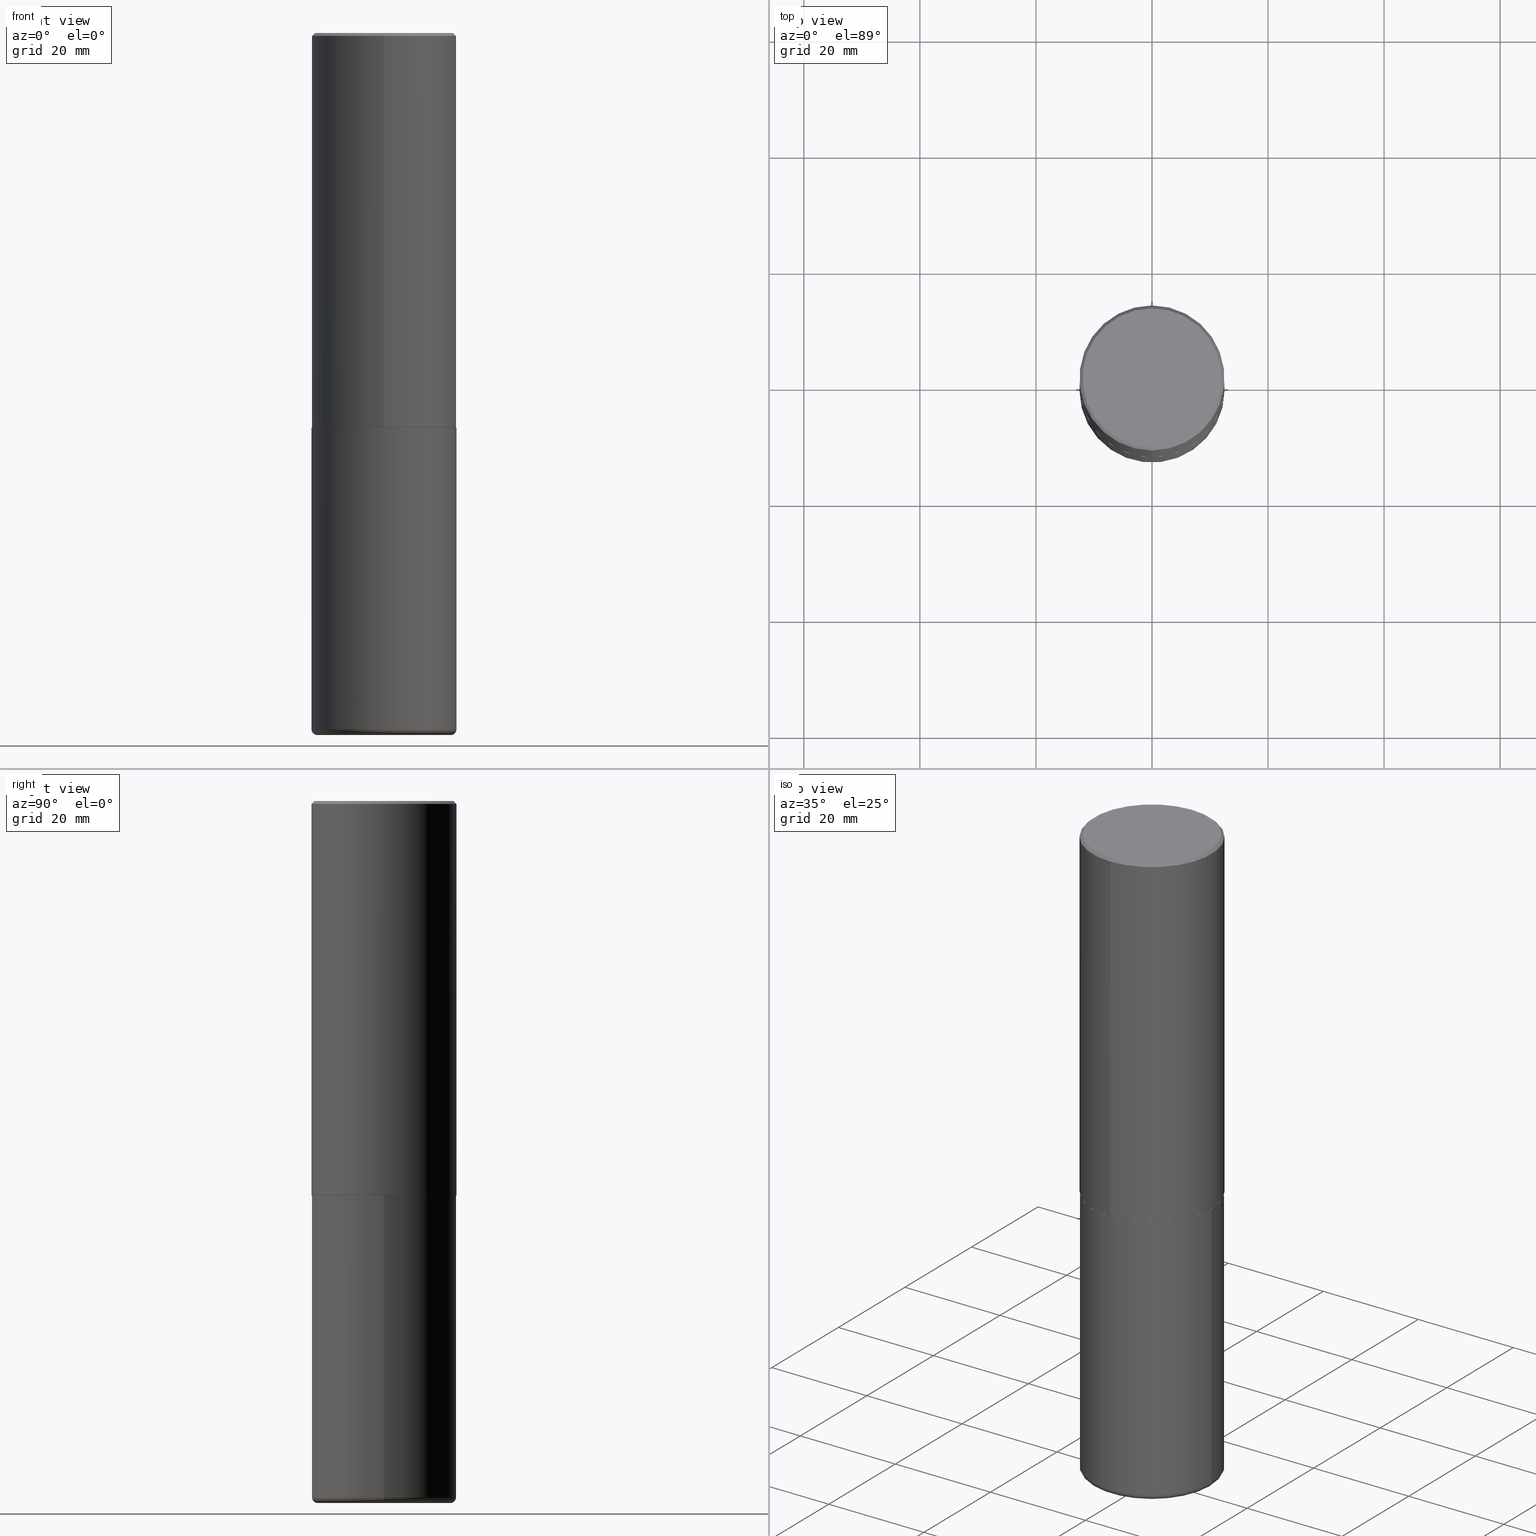
[diagram: canonical four-view strip — front | top / right | iso, engineering-drawing reading convention]
A machine part, canonical four-view strip (front | top / right | iso — engineering-drawing reading convention). The complete STEP part file that produces these views, byte-faithful:
ISO-10303-21;
HEADER;
FILE_DESCRIPTION (( 'STEP AP203' ),
    '1' );
FILE_NAME ('47143.STEP',
    '2024-03-05T23:20:40',
    ( '' ),
    ( '' ),
    'SwSTEP 2.0',
    'SolidWorks 2023',
    '' );
FILE_SCHEMA (( 'CONFIG_CONTROL_DESIGN' ));
ENDSEC;

DATA;
#1 = CARTESIAN_POINT ( 'NONE',  ( 0.000000000000000000, 0.000000000000000000, 0.000000000000000000 ) ) ;
#2 = UNCERTAINTY_MEASURE_WITH_UNIT (LENGTH_MEASURE( 1.000000000000000082E-05 ), #229, 'distance_accuracy_value', 'NONE');
#3 = DIMENSIONAL_EXPONENTS ( 1.000000000000000000, 0.000000000000000000, 0.000000000000000000, 0.000000000000000000, 0.000000000000000000, 0.000000000000000000, 0.000000000000000000 ) ;
#4 = COORDINATED_UNIVERSAL_TIME_OFFSET ( 5, 0, .BEHIND. ) ;
#5 = AXIS2_PLACEMENT_3D ( 'NONE', #167, #319, #10 ) ;
#6 = COORDINATED_UNIVERSAL_TIME_OFFSET ( 5, 0, .BEHIND. ) ;
#7 = EDGE_CURVE ( 'NONE', #388, #70, #258, .T. ) ;
#8 = ORIENTED_EDGE ( 'NONE', *, *, #371, .F. ) ;
#9 = CLOSED_SHELL ( 'NONE', ( #86, #340, #366, #161, #324, #414 ) ) ;
#10 = DIRECTION ( 'NONE',  ( 1.000000000000000000, -6.982962677686265133E-15, 4.883557194083112901E-29 ) ) ;
#11 = ORIENTED_EDGE ( 'NONE', *, *, #37, .F. ) ;
#12 = EDGE_CURVE ( 'NONE', #15, #331, #271, .T. ) ;
#13 = FACE_OUTER_BOUND ( 'NONE', #108, .T. ) ;
#14 = ORIENTED_EDGE ( 'NONE', *, *, #204, .F. ) ;
#15 = VERTEX_POINT ( 'NONE', #297 ) ;
#16 = ADVANCED_FACE ( 'NONE', ( #208 ), #336, .T. ) ;
#17 = AXIS2_PLACEMENT_3D ( 'NONE', #203, #38, #391 ) ;
#18 = ORIENTED_EDGE ( 'NONE', *, *, #7, .F. ) ;
#19 = DIRECTION ( 'NONE',  ( 0.000000000000000000, 0.000000000000000000, 1.000000000000000000 ) ) ;
#20 = APPROVAL ( #318, 'UNSPECIFIED' ) ;
#21 = ORIENTED_EDGE ( 'NONE', *, *, #172, .T. ) ;
#22 = CARTESIAN_POINT ( 'NONE',  ( -3.429682119145543892E-15, -0.4911500000000093014, -2.677199999999997360 ) ) ;
#23 = DIRECTION ( 'NONE',  ( 1.000000000000000000, -6.982962677686269077E-15, 0.000000000000000000 ) ) ;
#24 = CIRCLE ( 'NONE', #96, 0.03940000000000033753 ) ;
#25 = APPROVAL_PERSON_ORGANIZATION ( #288, #154, #350 ) ;
#26 = DIRECTION ( 'NONE',  ( 1.000000000000000000, -6.982962677686265922E-15, 0.000000000000000000 ) ) ;
#27 = CARTESIAN_POINT ( 'NONE',  ( 0.4921500000000000874, -1.993181951905385030E-14, -4.724399999999999267 ) ) ;
#28 = CC_DESIGN_DATE_AND_TIME_ASSIGNMENT ( #252, #98, ( #177 ) ) ;
#29 = FACE_OUTER_BOUND ( 'NONE', #397, .T. ) ;
#30 = CARTESIAN_POINT ( 'NONE',  ( -3.376394089603257868E-15, -0.4921499999999999764, -0.01999999999999839059 ) ) ;
#31 = APPROVAL_ROLE ( '' ) ;
#32 = DIRECTION ( 'NONE',  ( 1.000000000000000000, -6.982962677686265922E-15, 4.876176775795935793E-29 ) ) ;
#33 = CYLINDRICAL_SURFACE ( 'NONE', #150, 0.4921499999999999764 ) ;
#34 = DIRECTION ( 'NONE',  ( -2.447117958567619178E-29, 3.489119658767506053E-15, 1.000000000000000000 ) ) ;
#35 = ORIENTED_EDGE ( 'NONE', *, *, #199, .T. ) ;
#36 = AXIS2_PLACEMENT_3D ( 'NONE', #291, #389, #137 ) ;
#37 = EDGE_CURVE ( 'NONE', #374, #331, #404, .T. ) ;
#38 = DIRECTION ( 'NONE',  ( 2.438088387897960049E-29, -3.491481338843145188E-15, -1.000000000000000000 ) ) ;
#39 = ORIENTED_EDGE ( 'NONE', *, *, #53, .T. ) ;
#40 = CARTESIAN_POINT ( 'NONE',  ( -3.429682119145543892E-15, -0.4911500000000093014, -2.677199999999997360 ) ) ;
#41 = EDGE_CURVE ( 'NONE', #81, #361, #148, .T. ) ;
#42 = DIRECTION ( 'NONE',  ( -6.982962677686265922E-15, -1.000000000000000000, 3.489119658767506053E-15 ) ) ;
#43 = PLANE ( 'NONE',  #115 ) ;
#44 = VERTEX_POINT ( 'NONE', #235 ) ;
#45 = EDGE_LOOP ( 'NONE', ( #39, #264, #207, #135 ) ) ;
#46 = CC_DESIGN_DATE_AND_TIME_ASSIGNMENT ( #357, #418, ( #284 ) ) ;
#47 = CARTESIAN_POINT ( 'NONE',  ( 0.000000000000000000, 0.000000000000000000, 0.000000000000000000 ) ) ;
#48 = PRODUCT_DEFINITION_FORMATION_WITH_SPECIFIED_SOURCE ( 'ANY', '', #276, .NOT_KNOWN. ) ;
#49 = DIRECTION ( 'NONE',  ( -2.447117958567619178E-29, 3.489119658767506053E-15, 1.000000000000000000 ) ) ;
#50 = DIRECTION ( 'NONE',  ( -2.447117958567619178E-29, 3.489119658767506053E-15, 1.000000000000000000 ) ) ;
#51 = ORIENTED_EDGE ( 'NONE', *, *, #58, .F. ) ;
#52 = ORIENTED_EDGE ( 'NONE', *, *, #409, .F. ) ;
#53 = EDGE_CURVE ( 'NONE', #331, #15, #138, .T. ) ;
#54 = FACE_OUTER_BOUND ( 'NONE', #182, .T. ) ;
#55 = AXIS2_PLACEMENT_3D ( 'NONE', #211, #334, #151 ) ;
#56 = FACE_OUTER_BOUND ( 'NONE', #45, .T. ) ;
#57 = PRODUCT_DEFINITION_SHAPE ( 'NONE', 'NONE',  #284 ) ;
#58 = EDGE_CURVE ( 'NONE', #374, #44, #305, .T. ) ;
#59 = CARTESIAN_POINT ( 'NONE',  ( 1.164972429890475522E-28, -1.663271880198097847E-14, -4.763799999999999812 ) ) ;
#60 = APPROVAL_DATE_TIME ( #281, #253 ) ;
#61 = CARTESIAN_POINT ( 'NONE',  ( -3.307789109625541747E-15, -0.4721499999999996255, 1.872503941614685503E-15 ) ) ;
#62 = ADVANCED_BREP_SHAPE_REPRESENTATION ( '47143', ( #416, #136, #286 ), #170 ) ;
#63 = APPROVAL_PERSON_ORGANIZATION ( #348, #20, #31 ) ;
#64 = COORDINATED_UNIVERSAL_TIME_OFFSET ( 5, 0, .BEHIND. ) ;
#65 = DIRECTION ( 'NONE',  ( -6.982962677686265922E-15, -1.000000000000000000, 3.337287582609300506E-15 ) ) ;
#66 = FACE_OUTER_BOUND ( 'NONE', #295, .T. ) ;
#67 = EDGE_CURVE ( 'NONE', #331, #322, #244, .T. ) ;
#68 = PERSON_AND_ORGANIZATION_ROLE ( 'creator' ) ;
#69 = DIRECTION ( 'NONE',  ( -6.982962677686265922E-15, -1.000000000000000000, 3.489119658767506053E-15 ) ) ;
#70 = VERTEX_POINT ( 'NONE', #410 ) ;
#71 = DATE_AND_TIME ( #246, #130 ) ;
#72 = AXIS2_PLACEMENT_3D ( 'NONE', #209, #49, #180 ) ;
#73 = AXIS2_PLACEMENT_3D ( 'NONE', #103, #134, #387 ) ;
#74 = CARTESIAN_POINT ( 'NONE',  ( 3.489830646685796970E-15, 0.4911499999999905941, -2.677200000000000468 ) ) ;
#75 = ORIENTED_EDGE ( 'NONE', *, *, #7, .T. ) ;
#76 = PLANE ( 'NONE',  #17 ) ;
#77 = CLOSED_SHELL ( 'NONE', ( #245, #219, #260, #396, #16, #302, #296, #141 ) ) ;
#78 = CIRCLE ( 'NONE', #365, 0.4911499999999999755 ) ;
#79 =( NAMED_UNIT ( * ) PLANE_ANGLE_UNIT ( ) SI_UNIT ( $, .RADIAN. ) );
#80 = LOCAL_TIME ( 18, 20, 40.00000000000000000, #64 ) ;
#81 = VERTEX_POINT ( 'NONE', #220 ) ;
#82 =( NAMED_UNIT ( * ) SI_UNIT ( $, .STERADIAN. ) SOLID_ANGLE_UNIT ( ) );
#83 = ORIENTED_EDGE ( 'NONE', *, *, #317, .F. ) ;
#84 = APPLICATION_PROTOCOL_DEFINITION ( 'international standard', 'config_control_design', 1994, #176 ) ;
#85 = ORIENTED_EDGE ( 'NONE', *, *, #377, .F. ) ;
#86 = ADVANCED_FACE ( 'NONE', ( #354 ), #33, .T. ) ;
#87 = EDGE_LOOP ( 'NONE', ( #21, #181, #8, #341 ) ) ;
#88 = DIRECTION ( 'NONE',  ( -2.445468806185136877E-29, 3.491481338843145188E-15, 1.000000000000000000 ) ) ;
#89 = DIRECTION ( 'NONE',  ( -2.445468806185136597E-29, 3.491481338843145583E-15, 1.000000000000000000 ) ) ;
#90 = LINE ( 'NONE', #192, #196 ) ;
#91 = CC_DESIGN_PERSON_AND_ORGANIZATION_ASSIGNMENT ( #249, #383, ( #177 ) ) ;
#92 = CALENDAR_DATE ( 2024, 5, 3 ) ;
#93 = CARTESIAN_POINT ( 'NONE',  ( 0.4527499999999999858, -1.965669078955301187E-14, -4.724399999999999267 ) ) ;
#94 = PERSON_AND_ORGANIZATION_ROLE ( 'creator' ) ;
#95 = DIRECTION ( 'NONE',  ( 2.447117958567618897E-29, -3.489119658767506053E-15, -1.000000000000000000 ) ) ;
#96 = AXIS2_PLACEMENT_3D ( 'NONE', #93, #280, #307 ) ;
#97 = AXIS2_PLACEMENT_3D ( 'NONE', #289, #359, #327 ) ;
#98 = DATE_TIME_ROLE ( 'classification_date' ) ;
#99 = EDGE_CURVE ( 'NONE', #361, #372, #128, .T. ) ;
#100 = DIRECTION ( 'NONE',  ( 1.000000000000000000, -6.982962677686265133E-15, 4.883557194083112901E-29 ) ) ;
#101 = LINE ( 'NONE', #74, #190 ) ;
#102 = EDGE_LOOP ( 'NONE', ( #52, #85, #143, #116 ) ) ;
#103 = CARTESIAN_POINT ( 'NONE',  ( 6.551424198677227885E-29, -9.341071150452363547E-15, -2.677199999999999136 ) ) ;
#104 = EDGE_CURVE ( 'NONE', #70, #406, #24, .T. ) ;
#105 = CARTESIAN_POINT ( 'NONE',  ( 0.4921499999999999764, -1.278405892217416209E-14, -2.677199999999999580 ) ) ;
#106 = ORIENTED_EDGE ( 'NONE', *, *, #104, .T. ) ;
#107 = LENGTH_MEASURE_WITH_UNIT ( LENGTH_MEASURE( 0.02539999999999999897 ), #346 );
#108 = EDGE_LOOP ( 'NONE', ( #83, #287, #227, #224 ) ) ;
#109 = FACE_OUTER_BOUND ( 'NONE', #272, .T. ) ;
#110 = EDGE_CURVE ( 'NONE', #388, #81, #344, .T. ) ;
#111 = EDGE_LOOP ( 'NONE', ( #326, #267 ) ) ;
#112 = ORIENTED_EDGE ( 'NONE', *, *, #53, .F. ) ;
#113 = ORIENTED_EDGE ( 'NONE', *, *, #12, .T. ) ;
#114 = AXIS2_PLACEMENT_3D ( 'NONE', #59, #119, #380 ) ;
#115 = AXIS2_PLACEMENT_3D ( 'NONE', #364, #153, #232 ) ;
#116 = ORIENTED_EDGE ( 'NONE', *, *, #274, .T. ) ;
#117 = ORIENTED_EDGE ( 'NONE', *, *, #353, .F. ) ;
#118 = DIRECTION ( 'NONE',  ( -2.445468806185136597E-29, 3.491481338843145583E-15, 1.000000000000000000 ) ) ;
#119 = DIRECTION ( 'NONE',  ( -2.445468806185136597E-29, 3.491481338843145583E-15, 1.000000000000000000 ) ) ;
#120 = AXIS2_PLACEMENT_3D ( 'NONE', #347, #417, #349 ) ;
#121 = CC_DESIGN_PERSON_AND_ORGANIZATION_ASSIGNMENT ( #147, #268, ( #276 ) ) ;
#122 = APPROVAL_PERSON_ORGANIZATION ( #210, #253, #323 ) ;
#123 = CARTESIAN_POINT ( 'NONE',  ( 6.551424198677227885E-29, -9.341071150452363547E-15, -2.677199999999999136 ) ) ;
#124 = DIRECTION ( 'NONE',  ( 6.982962677686265922E-15, 1.000000000000000000, -3.489119658767506053E-15 ) ) ;
#125 = PERSON_AND_ORGANIZATION ( #303, #226 ) ;
#126 = EDGE_CURVE ( 'NONE', #44, #374, #78, .T. ) ;
#127 = DIRECTION ( 'NONE',  ( -2.447117958567619178E-29, 3.489119658767506053E-15, 1.000000000000000000 ) ) ;
#128 = CIRCLE ( 'NONE', #292, 0.4921499999999999764 ) ;
#129 = CC_DESIGN_APPROVAL ( #20, ( #177 ) ) ;
#130 = LOCAL_TIME ( 18, 20, 40.00000000000000000, #194 ) ;
#131 = PERSON_AND_ORGANIZATION_ROLE ( 'design_supplier' ) ;
#132 = DIRECTION ( 'NONE',  ( 2.447117958567619178E-29, -3.489119658767506053E-15, -1.000000000000000000 ) ) ;
#133 = PERSON_AND_ORGANIZATION ( #303, #226 ) ;
#134 = DIRECTION ( 'NONE',  ( -2.447117958567619178E-29, 3.489119658767506053E-15, 1.000000000000000000 ) ) ;
#135 = ORIENTED_EDGE ( 'NONE', *, *, #67, .F. ) ;
#136 = MANIFOLD_SOLID_BREP ( 'Body-Move/Copy2[2]', #77 ) ;
#137 = DIRECTION ( 'NONE',  ( -6.982962677686265922E-15, -1.000000000000000000, 3.486624039460257331E-15 ) ) ;
#138 = CIRCLE ( 'NONE', #72, 0.4921500000000002539 ) ;
#139 = DIRECTION ( 'NONE',  ( 5.024295867790635654E-15, 0.7071067811869121700, 0.7071067811861828645 ) ) ;
#140 = ORIENTED_EDGE ( 'NONE', *, *, #402, .T. ) ;
#141 = ADVANCED_FACE ( 'NONE', ( #309 ), #316, .F. ) ;
#142 = DIRECTION ( 'NONE',  ( -4.851104656540954809E-15, -0.7071067811865486830, -0.7071067811865462405 ) ) ;
#143 = ORIENTED_EDGE ( 'NONE', *, *, #179, .T. ) ;
#144 = AXIS2_PLACEMENT_3D ( 'NONE', #157, #95, #124 ) ;
#145 = APPLICATION_PROTOCOL_DEFINITION ( 'international standard', 'config_control_design', 1994, #333 ) ;
#146 = CARTESIAN_POINT ( 'NONE',  ( -0.4921499999999999764, 3.496936074043332897E-15, -2.420853904668951509E-29 ) ) ;
#147 = PERSON_AND_ORGANIZATION ( #303, #226 ) ;
#148 = LINE ( 'NONE', #146, #206 ) ;
#149 = CARTESIAN_POINT ( 'NONE',  ( 6.551424198677227885E-29, -9.341071150452363547E-15, -2.677199999999999136 ) ) ;
#150 = AXIS2_PLACEMENT_3D ( 'NONE', #248, #381, #155 ) ;
#151 = DIRECTION ( 'NONE',  ( -6.982962677686265922E-15, -1.000000000000000000, 3.489119658767506053E-15 ) ) ;
#152 = CARTESIAN_POINT ( 'NONE',  ( 0.000000000000000000, 0.000000000000000000, 0.000000000000000000 ) ) ;
#153 = DIRECTION ( 'NONE',  ( 2.438088387897960049E-29, -3.491481338843145188E-15, -1.000000000000000000 ) ) ;
#154 = APPROVAL ( #218, 'UNSPECIFIED' ) ;
#155 = DIRECTION ( 'NONE',  ( 1.000000000000000000, -6.982962677686265922E-15, 4.876176775795935793E-29 ) ) ;
#156 = DIRECTION ( 'NONE',  ( 1.000000000000000000, -6.982962677686261977E-15, 0.000000000000000000 ) ) ;
#157 = CARTESIAN_POINT ( 'NONE',  ( 3.297005828269567997E-15, 0.4721499999999996255, -1.534829799523272196E-15 ) ) ;
#158 = AXIS2_PLACEMENT_3D ( 'NONE', #233, #301, #369 ) ;
#159 = COORDINATED_UNIVERSAL_TIME_OFFSET ( 5, 0, .BEHIND. ) ;
#160 = CARTESIAN_POINT ( 'NONE',  ( -3.436665081823296565E-15, -0.4921500000000000874, 1.717170240062428491E-15 ) ) ;
#161 = ADVANCED_FACE ( 'NONE', ( #275 ), #189, .T. ) ;
#162 = CARTESIAN_POINT ( 'NONE',  ( 6.551424198677227885E-29, -9.341071150452363547E-15, -2.677199999999999136 ) ) ;
#163 = CALENDAR_DATE ( 2024, 5, 3 ) ;
#164 = AXIS2_PLACEMENT_3D ( 'NONE', #386, #345, #213 ) ;
#165 = ORIENTED_EDGE ( 'NONE', *, *, #67, .T. ) ;
#166 = APPROVAL_DATE_TIME ( #283, #154 ) ;
#167 = CARTESIAN_POINT ( 'NONE',  ( 1.155337282794105951E-28, -1.649515443723055610E-14, -4.724399999999999267 ) ) ;
#168 = EDGE_LOOP ( 'NONE', ( #35, #399 ) ) ;
#169 = CONICAL_SURFACE ( 'NONE', #384, 0.4911499999999999755, 0.7853981633979605359 ) ;
#170 =( GEOMETRIC_REPRESENTATION_CONTEXT ( 3 ) GLOBAL_UNCERTAINTY_ASSIGNED_CONTEXT ( ( #2 ) ) GLOBAL_UNIT_ASSIGNED_CONTEXT ( ( #229, #79, #82 ) ) REPRESENTATION_CONTEXT ( 'NONE', 'WORKASPACE' ) );
#171 = FACE_OUTER_BOUND ( 'NONE', #201, .T. ) ;
#172 = EDGE_CURVE ( 'NONE', #70, #388, #320, .T. ) ;
#173 = DIRECTION ( 'NONE',  ( -6.982962677686265922E-15, -1.000000000000000000, 3.489119658767506053E-15 ) ) ;
#174 = DIRECTION ( 'NONE',  ( -6.982962677686265922E-15, -1.000000000000000000, 3.337287582609300506E-15 ) ) ;
#175 = ORIENTED_EDGE ( 'NONE', *, *, #126, .F. ) ;
#176 = APPLICATION_CONTEXT ( 'configuration controlled 3d designs of mechanical parts and assemblies' ) ;
#177 = SECURITY_CLASSIFICATION ( '', '', #312 ) ;
#178 = CARTESIAN_POINT ( 'NONE',  ( -0.4527499999999999858, -1.320697746450717054E-14, -4.763799999999999812 ) ) ;
#179 = EDGE_CURVE ( 'NONE', #304, #202, #311, .T. ) ;
#180 = DIRECTION ( 'NONE',  ( -6.982962677686266711E-15, -1.000000000000000000, 3.330506545156064285E-15 ) ) ;
#181 = ORIENTED_EDGE ( 'NONE', *, *, #110, .T. ) ;
#182 = EDGE_LOOP ( 'NONE', ( #117, #393, #205, #342 ) ) ;
#183 = AXIS2_PLACEMENT_3D ( 'NONE', #1, #89, #32 ) ;
#184 = CARTESIAN_POINT ( 'NONE',  ( 4.894235917135264524E-31, -6.978239317535049922E-17, -0.02000000000000010797 ) ) ;
#185 = DIRECTION ( 'NONE',  ( -6.982962677686265922E-15, -1.000000000000000000, 3.489119658767506053E-15 ) ) ;
#186 = CYLINDRICAL_SURFACE ( 'NONE', #330, 0.4921500000000000874 ) ;
#187 = CALENDAR_DATE ( 2024, 5, 3 ) ;
#188 = EDGE_CURVE ( 'NONE', #406, #372, #90, .T. ) ;
#189 = CYLINDRICAL_SURFACE ( 'NONE', #183, 0.4921499999999999764 ) ;
#190 = VECTOR ( 'NONE', #139, 39.37007874015748143 ) ;
#191 = DESIGN_CONTEXT ( 'detailed design', #176, 'design' ) ;
#192 = CARTESIAN_POINT ( 'NONE',  ( 0.4921499999999999764, -3.436665081823295777E-15, 2.399810400207969603E-29 ) ) ;
#193 = FACE_OUTER_BOUND ( 'NONE', #87, .T. ) ;
#194 = COORDINATED_UNIVERSAL_TIME_OFFSET ( 5, 0, .BEHIND. ) ;
#195 = FACE_OUTER_BOUND ( 'NONE', #168, .T. ) ;
#196 = VECTOR ( 'NONE', #250, 39.37007874015748143 ) ;
#197 = EDGE_LOOP ( 'NONE', ( #408, #356, #363, #256 ) ) ;
#198 = VECTOR ( 'NONE', #142, 39.37007874015748854 ) ;
#199 = EDGE_CURVE ( 'NONE', #372, #361, #238, .T. ) ;
#200 = PLANE ( 'NONE',  #265 ) ;
#201 = EDGE_LOOP ( 'NONE', ( #51, #175 ) ) ;
#202 = VERTEX_POINT ( 'NONE', #221 ) ;
#203 = CARTESIAN_POINT ( 'NONE',  ( 6.547009087918846705E-29, -9.347393840350866318E-15, -2.677199999999999580 ) ) ;
#204 = EDGE_CURVE ( 'NONE', #15, #202, #242, .T. ) ;
#205 = ORIENTED_EDGE ( 'NONE', *, *, #214, .T. ) ;
#206 = VECTOR ( 'NONE', #88, 39.37007874015748143 ) ;
#207 = ORIENTED_EDGE ( 'NONE', *, *, #214, .F. ) ;
#208 = FACE_OUTER_BOUND ( 'NONE', #300, .T. ) ;
#209 = CARTESIAN_POINT ( 'NONE',  ( 6.548977080718662055E-29, -9.337582030793598206E-15, -2.676199999999999690 ) ) ;
#210 = PERSON_AND_ORGANIZATION ( #303, #226 ) ;
#211 = CARTESIAN_POINT ( 'NONE',  ( 0.000000000000000000, 0.000000000000000000, 0.000000000000000000 ) ) ;
#212 = CARTESIAN_POINT ( 'NONE',  ( 1.164972429890475522E-28, -1.663271880198097847E-14, -4.763799999999999812 ) ) ;
#213 = DIRECTION ( 'NONE',  ( -6.982962677686265922E-15, -1.000000000000000000, 3.486624039460257331E-15 ) ) ;
#214 = EDGE_CURVE ( 'NONE', #322, #202, #390, .T. ) ;
#215 = AXIS2_PLACEMENT_3D ( 'NONE', #184, #132, #254 ) ;
#216 = CARTESIAN_POINT ( 'NONE',  ( 6.547009087918846705E-29, -9.347393840350866318E-15, -2.677199999999999580 ) ) ;
#217 = DIRECTION ( 'NONE',  ( -6.982962677686265922E-15, -1.000000000000000000, 3.337287582609300506E-15 ) ) ;
#218 = APPROVAL_STATUS ( 'not_yet_approved' ) ;
#219 = ADVANCED_FACE ( 'NONE', ( #56 ), #186, .T. ) ;
#220 = CARTESIAN_POINT ( 'NONE',  ( -0.4921500000000000874, -1.299821836318722241E-14, -4.724399999999999267 ) ) ;
#221 = CARTESIAN_POINT ( 'NONE',  ( 3.436665081823295777E-15, 0.4921499999999998098, -0.02000000000000182188 ) ) ;
#222 = AXIS2_PLACEMENT_3D ( 'NONE', #212, #269, #23 ) ;
#223 = APPROVAL_DATE_TIME ( #71, #20 ) ;
#224 = ORIENTED_EDGE ( 'NONE', *, *, #12, .F. ) ;
#225 = CC_DESIGN_PERSON_AND_ORGANIZATION_ASSIGNMENT ( #279, #68, ( #284 ) ) ;
#226 = ORGANIZATION ( 'UNSPECIFIED', 'UNSPECIFIED', '' ) ;
#227 = ORIENTED_EDGE ( 'NONE', *, *, #37, .T. ) ;
#228 = CARTESIAN_POINT ( 'NONE',  ( 3.366835455046432084E-15, 0.4721499999999996255, -1.422271752159468089E-15 ) ) ;
#229 =( CONVERSION_BASED_UNIT ( 'INCH', #107 ) LENGTH_UNIT ( ) NAMED_UNIT ( #3 ) );
#230 = VECTOR ( 'NONE', #282, 39.37007874015748854 ) ;
#231 = AXIS2_PLACEMENT_3D ( 'NONE', #355, #262, #100 ) ;
#232 = DIRECTION ( 'NONE',  ( -1.000000000000000000, 6.982962677686265922E-15, -4.876176775795935793E-29 ) ) ;
#233 = CARTESIAN_POINT ( 'NONE',  ( 6.548977080718662055E-29, -9.337582030793598206E-15, -2.676199999999999690 ) ) ;
#234 = DIRECTION ( 'NONE',  ( 2.447117958567619178E-29, -3.489119658767506053E-15, -1.000000000000000000 ) ) ;
#235 = CARTESIAN_POINT ( 'NONE',  ( 3.493383360364598263E-15, 0.4911499999999905941, -2.677200000000000468 ) ) ;
#236 = MECHANICAL_CONTEXT ( 'NONE', #333, 'mechanical' ) ;
#237 = ORIENTED_EDGE ( 'NONE', *, *, #402, .F. ) ;
#238 = CIRCLE ( 'NONE', #358, 0.4921499999999999764 ) ;
#239 = CC_DESIGN_APPROVAL ( #253, ( #284 ) ) ;
#240 = VERTEX_POINT ( 'NONE', #61 ) ;
#241 = DIRECTION ( 'NONE',  ( -4.937700262167077130E-15, -0.7071067811869072850, 0.7071067811861877495 ) ) ;
#242 = LINE ( 'NONE', #411, #351 ) ;
#243 = LOCAL_TIME ( 18, 20, 40.00000000000000000, #159 ) ;
#244 = LINE ( 'NONE', #160, #285 ) ;
#245 = ADVANCED_FACE ( 'NONE', ( #29 ), #169, .T. ) ;
#246 = CALENDAR_DATE ( 2024, 5, 3 ) ;
#247 = DIRECTION ( 'NONE',  ( -2.447117958567619178E-29, 3.489119658767506053E-15, 1.000000000000000000 ) ) ;
#248 = CARTESIAN_POINT ( 'NONE',  ( 0.000000000000000000, 0.000000000000000000, 0.000000000000000000 ) ) ;
#249 = PERSON_AND_ORGANIZATION ( #303, #226 ) ;
#250 = DIRECTION ( 'NONE',  ( -2.445468806185136877E-29, 3.491481338843145188E-15, 1.000000000000000000 ) ) ;
#251 = AXIS2_PLACEMENT_3D ( 'NONE', #310, #234, #403 ) ;
#252 = DATE_AND_TIME ( #187, #80 ) ;
#253 = APPROVAL ( #339, 'UNSPECIFIED' ) ;
#254 = DIRECTION ( 'NONE',  ( 6.982962677686265922E-15, 1.000000000000000000, -3.486624039460257331E-15 ) ) ;
#255 = CARTESIAN_POINT ( 'NONE',  ( -5.508856381705404921E-45, 7.854569916190676353E-31, 2.251160947276086573E-16 ) ) ;
#256 = ORIENTED_EDGE ( 'NONE', *, *, #188, .F. ) ;
#257 = CARTESIAN_POINT ( 'NONE',  ( -0.4921499999999999764, -9.424338064747378311E-15, -2.677199999999999580 ) ) ;
#258 = CIRCLE ( 'NONE', #222, 0.4527499999999999858 ) ;
#259 = CIRCLE ( 'NONE', #412, 0.4721499999999996255 ) ;
#260 = ADVANCED_FACE ( 'NONE', ( #54 ), #407, .T. ) ;
#261 = ORIENTED_EDGE ( 'NONE', *, *, #110, .F. ) ;
#262 = DIRECTION ( 'NONE',  ( -2.445468806185136597E-29, 3.491481338843145583E-15, 1.000000000000000000 ) ) ;
#263 = DIRECTION ( 'NONE',  ( 1.000000000000000000, 0.000000000000000000, 0.000000000000000000 ) ) ;
#264 = ORIENTED_EDGE ( 'NONE', *, *, #204, .T. ) ;
#265 = AXIS2_PLACEMENT_3D ( 'NONE', #321, #329, #42 ) ;
#266 = CC_DESIGN_PERSON_AND_ORGANIZATION_ASSIGNMENT ( #133, #94, ( #48 ) ) ;
#267 = ORIENTED_EDGE ( 'NONE', *, *, #353, .T. ) ;
#268 = PERSON_AND_ORGANIZATION_ROLE ( 'design_owner' ) ;
#269 = DIRECTION ( 'NONE',  ( -2.445468806185136597E-29, 3.491481338843145583E-15, 1.000000000000000000 ) ) ;
#270 = DIRECTION ( 'NONE',  ( -2.447117958567619178E-29, 3.489119658767506053E-15, 1.000000000000000000 ) ) ;
#271 = CIRCLE ( 'NONE', #158, 0.4921500000000002539 ) ;
#272 = EDGE_LOOP ( 'NONE', ( #401, #18 ) ) ;
#273 = CARTESIAN_POINT ( 'NONE',  ( 3.436665081823295777E-15, 0.4921499999999998098, -0.02000000000000182188 ) ) ;
#274 = EDGE_CURVE ( 'NONE', #202, #322, #337, .T. ) ;
#275 = FACE_OUTER_BOUND ( 'NONE', #395, .T. ) ;
#276 = PRODUCT ( '47143', '47143', '', ( #236 ) ) ;
#277 = TOROIDAL_SURFACE ( 'NONE', #231, 0.4527499999999999858, 0.03940000000000033753 ) ;
#278 = DIRECTION ( 'NONE',  ( -2.447117958567619178E-29, 3.489119658767506053E-15, 1.000000000000000000 ) ) ;
#279 = PERSON_AND_ORGANIZATION ( #303, #226 ) ;
#280 = DIRECTION ( 'NONE',  ( -6.982962677686266711E-15, -1.000000000000000000, 3.491481338843145583E-15 ) ) ;
#281 = DATE_AND_TIME ( #163, #368 ) ;
#282 = DIRECTION ( 'NONE',  ( 4.937700262164538576E-15, 0.7071067811865437980, -0.7071067811865511255 ) ) ;
#283 = DATE_AND_TIME ( #315, #243 ) ;
#284 = PRODUCT_DEFINITION ( 'UNKNOWN', '', #48, #191 ) ;
#285 = VECTOR ( 'NONE', #247, 39.37007874015748143 ) ;
#286 = AXIS2_PLACEMENT_3D ( 'NONE', #47, #19, #263 ) ;
#287 = ORIENTED_EDGE ( 'NONE', *, *, #126, .T. ) ;
#288 = PERSON_AND_ORGANIZATION ( #303, #226 ) ;
#289 = CARTESIAN_POINT ( 'NONE',  ( 1.155337282794105951E-28, -1.649515443723055610E-14, -4.724399999999999267 ) ) ;
#290 = ORIENTED_EDGE ( 'NONE', *, *, #58, .T. ) ;
#291 = CARTESIAN_POINT ( 'NONE',  ( 4.894235917135264524E-31, -6.978239317535049922E-17, -0.02000000000000010797 ) ) ;
#292 = AXIS2_PLACEMENT_3D ( 'NONE', #216, #343, #376 ) ;
#293 = CONICAL_SURFACE ( 'NONE', #73, 0.4911499999999999755, 0.7853981633979605359 ) ;
#294 = ORIENTED_EDGE ( 'NONE', *, *, #317, .T. ) ;
#295 = EDGE_LOOP ( 'NONE', ( #261, #75, #106, #237 ) ) ;
#296 = ADVANCED_FACE ( 'NONE', ( #171 ), #200, .F. ) ;
#297 = CARTESIAN_POINT ( 'NONE',  ( 3.496936074043367212E-15, 0.4921499999999909281, -2.676200000000001467 ) ) ;
#298 = CIRCLE ( 'NONE', #97, 0.4921499999999999764 ) ;
#299 = LINE ( 'NONE', #30, #198 ) ;
#300 = EDGE_LOOP ( 'NONE', ( #14, #113, #165, #328 ) ) ;
#301 = DIRECTION ( 'NONE',  ( -2.447117958567619178E-29, 3.489119658767506053E-15, 1.000000000000000000 ) ) ;
#302 = ADVANCED_FACE ( 'NONE', ( #13 ), #293, .T. ) ;
#303 = PERSON ( 'UNSPECIFIED', 'UNSPECIFIED', 'UNSPECIFIED', ('UNSPECIFIED'), ('UNSPECIFIED'), ('UNSPECIFIED') ) ;
#304 = VERTEX_POINT ( 'NONE', #228 ) ;
#305 = CIRCLE ( 'NONE', #373, 0.4911499999999999755 ) ;
#306 = TOROIDAL_SURFACE ( 'NONE', #5, 0.4527499999999999858, 0.03940000000000033753 ) ;
#307 = DIRECTION ( 'NONE',  ( 1.000000000000000000, -6.982962677686268288E-15, 0.000000000000000000 ) ) ;
#308 = DIRECTION ( 'NONE',  ( -2.445468806185136597E-29, 3.491481338843145583E-15, 1.000000000000000000 ) ) ;
#309 = FACE_OUTER_BOUND ( 'NONE', #111, .T. ) ;
#310 = CARTESIAN_POINT ( 'NONE',  ( 4.894235917135264524E-31, -6.978239317535049922E-17, -0.02000000000000010797 ) ) ;
#311 = LINE ( 'NONE', #273, #230 ) ;
#312 = SECURITY_CLASSIFICATION_LEVEL ( 'unclassified' ) ;
#313 = AXIS2_PLACEMENT_3D ( 'NONE', #335, #308, #156 ) ;
#314 = DIRECTION ( 'NONE',  ( -2.447117958567619178E-29, 3.489119658767506053E-15, 1.000000000000000000 ) ) ;
#315 = CALENDAR_DATE ( 2024, 5, 3 ) ;
#316 = PLANE ( 'NONE',  #144 ) ;
#317 = EDGE_CURVE ( 'NONE', #44, #15, #101, .T. ) ;
#318 = APPROVAL_STATUS ( 'not_yet_approved' ) ;
#319 = DIRECTION ( 'NONE',  ( -2.445468806185136597E-29, 3.491481338843145583E-15, 1.000000000000000000 ) ) ;
#320 = CIRCLE ( 'NONE', #114, 0.4527499999999999858 ) ;
#321 = CARTESIAN_POINT ( 'NONE',  ( 6.551424198677229006E-29, -9.341071150452363547E-15, -2.677199999999999580 ) ) ;
#322 = VERTEX_POINT ( 'NONE', #325 ) ;
#323 = APPROVAL_ROLE ( '' ) ;
#324 = ADVANCED_FACE ( 'NONE', ( #66 ), #306, .T. ) ;
#325 = CARTESIAN_POINT ( 'NONE',  ( -3.376394089603257868E-15, -0.4921499999999999764, -0.01999999999999839059 ) ) ;
#326 = ORIENTED_EDGE ( 'NONE', *, *, #377, .T. ) ;
#327 = DIRECTION ( 'NONE',  ( 1.000000000000000000, -6.982962677686261977E-15, 0.000000000000000000 ) ) ;
#328 = ORIENTED_EDGE ( 'NONE', *, *, #274, .F. ) ;
#329 = DIRECTION ( 'NONE',  ( -2.447117958567618897E-29, 3.489119658767506053E-15, 1.000000000000000000 ) ) ;
#330 = AXIS2_PLACEMENT_3D ( 'NONE', #152, #413, #185 ) ;
#331 = VERTEX_POINT ( 'NONE', #394 ) ;
#332 = ORIENTED_EDGE ( 'NONE', *, *, #99, .F. ) ;
#333 = APPLICATION_CONTEXT ( 'configuration controlled 3d designs of mechanical parts and assemblies' ) ;
#334 = DIRECTION ( 'NONE',  ( -2.447117958567619178E-29, 3.489119658767506053E-15, 1.000000000000000000 ) ) ;
#335 = CARTESIAN_POINT ( 'NONE',  ( 1.155337282794105951E-28, -1.649515443723055610E-14, -4.724399999999999267 ) ) ;
#336 = CYLINDRICAL_SURFACE ( 'NONE', #55, 0.4921500000000000874 ) ;
#337 = CIRCLE ( 'NONE', #36, 0.4921499999999999209 ) ;
#338 = CIRCLE ( 'NONE', #367, 0.4721499999999996255 ) ;
#339 = APPROVAL_STATUS ( 'not_yet_approved' ) ;
#340 = ADVANCED_FACE ( 'NONE', ( #193 ), #277, .T. ) ;
#341 = ORIENTED_EDGE ( 'NONE', *, *, #104, .F. ) ;
#342 = ORIENTED_EDGE ( 'NONE', *, *, #179, .F. ) ;
#343 = DIRECTION ( 'NONE',  ( -2.445468806185136597E-29, 3.491481338843145583E-15, 1.000000000000000000 ) ) ;
#344 = CIRCLE ( 'NONE', #120, 0.03940000000000033753 ) ;
#345 = DIRECTION ( 'NONE',  ( -2.447117958567619178E-29, 3.489119658767506053E-15, 1.000000000000000000 ) ) ;
#346 =( LENGTH_UNIT ( ) NAMED_UNIT ( * ) SI_UNIT ( $, .METRE. ) );
#347 = CARTESIAN_POINT ( 'NONE',  ( -0.4527499999999999858, -1.327817220107670261E-14, -4.724399999999999267 ) ) ;
#348 = PERSON_AND_ORGANIZATION ( #303, #226 ) ;
#349 = DIRECTION ( 'NONE',  ( -1.000000000000000000, 7.105427357601014480E-15, 0.000000000000000000 ) ) ;
#350 = APPROVAL_ROLE ( '' ) ;
#351 = VECTOR ( 'NONE', #278, 39.37007874015748143 ) ;
#352 = CONICAL_SURFACE ( 'NONE', #251, 0.4921499999999999209, 0.7853981633974466137 ) ;
#353 = EDGE_CURVE ( 'NONE', #240, #304, #259, .T. ) ;
#354 = FACE_OUTER_BOUND ( 'NONE', #197, .T. ) ;
#355 = CARTESIAN_POINT ( 'NONE',  ( 1.155337282794105951E-28, -1.649515443723055610E-14, -4.724399999999999267 ) ) ;
#356 = ORIENTED_EDGE ( 'NONE', *, *, #41, .T. ) ;
#357 = DATE_AND_TIME ( #92, #360 ) ;
#358 = AXIS2_PLACEMENT_3D ( 'NONE', #382, #118, #26 ) ;
#359 = DIRECTION ( 'NONE',  ( -2.445468806185136597E-29, 3.491481338843145583E-15, 1.000000000000000000 ) ) ;
#360 = LOCAL_TIME ( 18, 20, 40.00000000000000000, #4 ) ;
#361 = VERTEX_POINT ( 'NONE', #257 ) ;
#362 = CARTESIAN_POINT ( 'NONE',  ( -5.508856381705404921E-45, 7.854569916190676353E-31, 2.251160947276086573E-16 ) ) ;
#363 = ORIENTED_EDGE ( 'NONE', *, *, #199, .F. ) ;
#364 = CARTESIAN_POINT ( 'NONE',  ( 7.635318159677945866E-29, -2.238157687916168233E-14, -4.763799999999999812 ) ) ;
#365 = AXIS2_PLACEMENT_3D ( 'NONE', #162, #127, #217 ) ;
#366 = ADVANCED_FACE ( 'NONE', ( #195 ), #76, .F. ) ;
#367 = AXIS2_PLACEMENT_3D ( 'NONE', #255, #50, #173 ) ;
#368 = LOCAL_TIME ( 18, 20, 40.00000000000000000, #6 ) ;
#369 = DIRECTION ( 'NONE',  ( -6.982962677686266711E-15, -1.000000000000000000, 3.330506545156064285E-15 ) ) ;
#370 = ORIENTED_EDGE ( 'NONE', *, *, #188, .T. ) ;
#371 = EDGE_CURVE ( 'NONE', #406, #81, #298, .T. ) ;
#372 = VERTEX_POINT ( 'NONE', #105 ) ;
#373 = AXIS2_PLACEMENT_3D ( 'NONE', #149, #270, #174 ) ;
#374 = VERTEX_POINT ( 'NONE', #40 ) ;
#375 = ORIENTED_EDGE ( 'NONE', *, *, #41, .F. ) ;
#376 = DIRECTION ( 'NONE',  ( 1.000000000000000000, -6.982962677686265922E-15, 0.000000000000000000 ) ) ;
#377 = EDGE_CURVE ( 'NONE', #304, #240, #338, .T. ) ;
#378 = VECTOR ( 'NONE', #241, 39.37007874015748143 ) ;
#379 = CC_DESIGN_APPROVAL ( #154, ( #48 ) ) ;
#380 = DIRECTION ( 'NONE',  ( 1.000000000000000000, -6.982962677686269077E-15, 0.000000000000000000 ) ) ;
#381 = DIRECTION ( 'NONE',  ( -2.445468806185136597E-29, 3.491481338843145583E-15, 1.000000000000000000 ) ) ;
#382 = CARTESIAN_POINT ( 'NONE',  ( 6.547009087918846705E-29, -9.347393840350866318E-15, -2.677199999999999580 ) ) ;
#383 = PERSON_AND_ORGANIZATION_ROLE ( 'classification_officer' ) ;
#384 = AXIS2_PLACEMENT_3D ( 'NONE', #123, #314, #65 ) ;
#385 = CC_DESIGN_SECURITY_CLASSIFICATION ( #177, ( #48 ) ) ;
#386 = CARTESIAN_POINT ( 'NONE',  ( 4.894235917135264524E-31, -6.978239317535049922E-17, -0.02000000000000010797 ) ) ;
#387 = DIRECTION ( 'NONE',  ( -6.982962677686265922E-15, -1.000000000000000000, 3.337287582609300506E-15 ) ) ;
#388 = VERTEX_POINT ( 'NONE', #178 ) ;
#389 = DIRECTION ( 'NONE',  ( -2.447117958567619178E-29, 3.489119658767506053E-15, 1.000000000000000000 ) ) ;
#390 = CIRCLE ( 'NONE', #164, 0.4921499999999999209 ) ;
#391 = DIRECTION ( 'NONE',  ( -1.000000000000000000, 6.982962677686265922E-15, -4.876176775795935793E-29 ) ) ;
#392 = CIRCLE ( 'NONE', #313, 0.4921499999999999764 ) ;
#393 = ORIENTED_EDGE ( 'NONE', *, *, #409, .T. ) ;
#394 = CARTESIAN_POINT ( 'NONE',  ( -3.436665081823232273E-15, -0.4921500000000095798, -2.676199999999997914 ) ) ;
#395 = EDGE_LOOP ( 'NONE', ( #375, #140, #370, #332 ) ) ;
#396 = ADVANCED_FACE ( 'NONE', ( #400 ), #352, .T. ) ;
#397 = EDGE_LOOP ( 'NONE', ( #290, #294, #112, #11 ) ) ;
#398 = CC_DESIGN_PERSON_AND_ORGANIZATION_ASSIGNMENT ( #125, #131, ( #48 ) ) ;
#399 = ORIENTED_EDGE ( 'NONE', *, *, #99, .T. ) ;
#400 = FACE_OUTER_BOUND ( 'NONE', #102, .T. ) ;
#401 = ORIENTED_EDGE ( 'NONE', *, *, #172, .F. ) ;
#402 = EDGE_CURVE ( 'NONE', #81, #406, #392, .T. ) ;
#403 = DIRECTION ( 'NONE',  ( 6.982962677686265922E-15, 1.000000000000000000, -3.486624039460257331E-15 ) ) ;
#404 = LINE ( 'NONE', #22, #378 ) ;
#405 = PRODUCT_RELATED_PRODUCT_CATEGORY ( 'detail', '', ( #276 ) ) ;
#406 = VERTEX_POINT ( 'NONE', #27 ) ;
#407 = CONICAL_SURFACE ( 'NONE', #215, 0.4921499999999999209, 0.7853981633974466137 ) ;
#408 = ORIENTED_EDGE ( 'NONE', *, *, #371, .T. ) ;
#409 = EDGE_CURVE ( 'NONE', #240, #322, #299, .T. ) ;
#410 = CARTESIAN_POINT ( 'NONE',  ( 0.4527499999999999858, -1.979425515430343739E-14, -4.763799999999999812 ) ) ;
#411 = CARTESIAN_POINT ( 'NONE',  ( 3.496936074043333291E-15, 0.4921500000000000874, -1.717170240062428491E-15 ) ) ;
#412 = AXIS2_PLACEMENT_3D ( 'NONE', #362, #34, #69 ) ;
#413 = DIRECTION ( 'NONE',  ( -2.447117958567619178E-29, 3.489119658767506053E-15, 1.000000000000000000 ) ) ;
#414 = ADVANCED_FACE ( 'NONE', ( #109 ), #43, .T. ) ;
#415 = SHAPE_DEFINITION_REPRESENTATION ( #57, #62 ) ;
#416 = MANIFOLD_SOLID_BREP ( 'Body-Move/Copy2[1]', #9 ) ;
#417 = DIRECTION ( 'NONE',  ( 7.105427357601001859E-15, 1.000000000000000000, -3.491481338843145583E-15 ) ) ;
#418 = DATE_TIME_ROLE ( 'creation_date' ) ;
ENDSEC;
END-ISO-10303-21;
